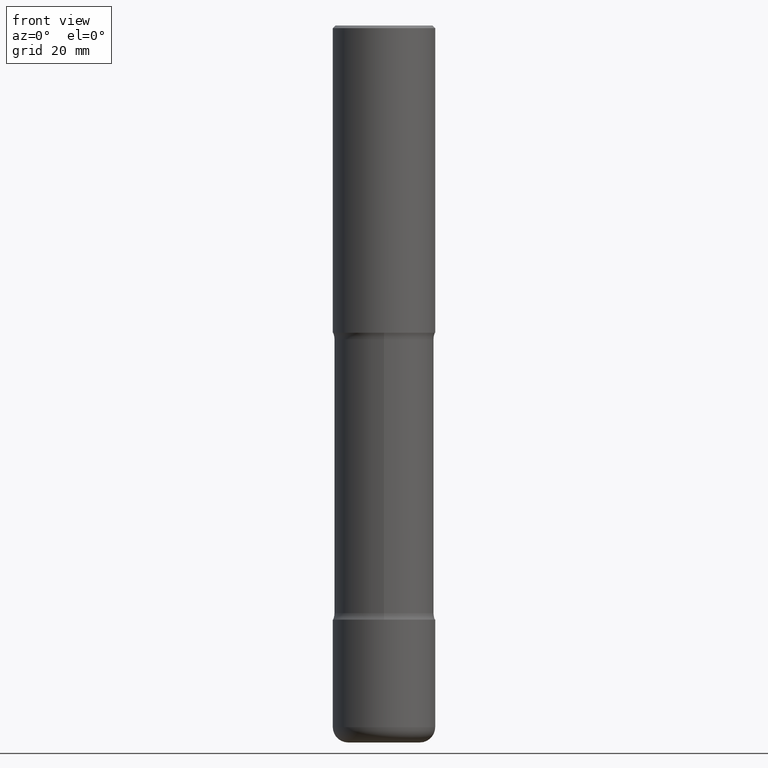
[diagram: clean part render]
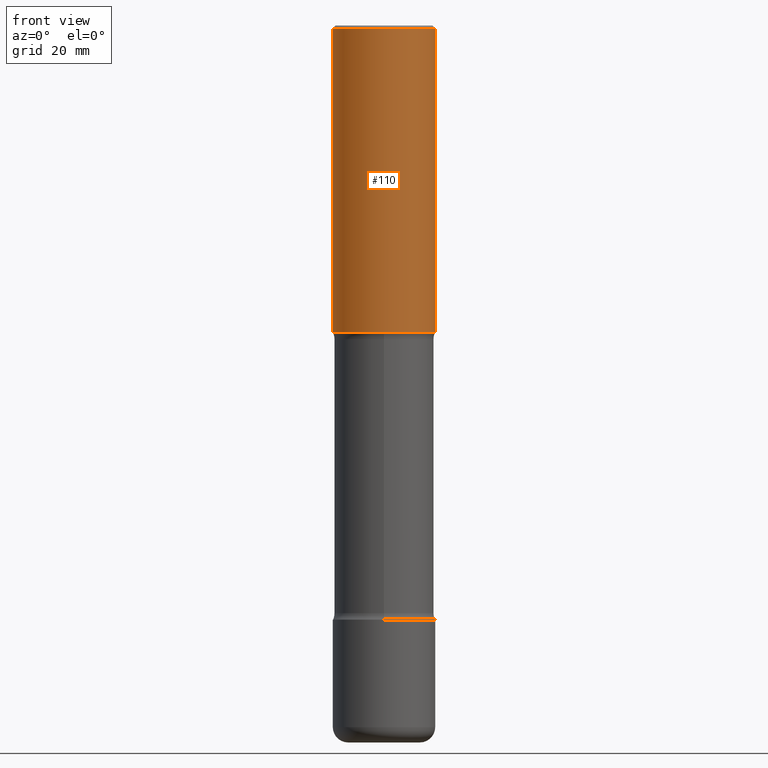
[diagram: same view with one face highlighted and labeled with its STEP entity id]
A machine part, front view. The second image highlights one B-rep face of the part: STEP entity #110.
In plain terms, the highlighted cylindrical surface (partial cylindrical patch) has radius 10 mm, axis along (-0, 0, 1).
Its self-contained STEP definition (entity closure, byte-faithful):
#14 = VECTOR ( 'NONE', #131, 39.37007874015748143 ) ;
#23 = AXIS2_PLACEMENT_3D ( 'NONE', #50, #111, #513 ) ;
#28 = ORIENTED_EDGE ( 'NONE', *, *, #502, .F. ) ;
#39 = DIRECTION ( 'NONE',  ( -2.445468806185136597E-29, 3.491481338843145583E-15, 1.000000000000000000 ) ) ;
#50 = CARTESIAN_POINT ( 'NONE',  ( 4.890937612370294178E-31, -6.982962677686321191E-17, -0.02000000000000008715 ) ) ;
#66 = CARTESIAN_POINT ( 'NONE',  ( 0.3937000000000002164, -1.099676962482036442E-14, -2.362200000000000077 ) ) ;
#76 = VECTOR ( 'NONE', #407, 39.37007874015748143 ) ;
#110 = ADVANCED_FACE ( 'NONE', ( #481 ), #472, .T. ) ;
#111 = DIRECTION ( 'NONE',  ( -2.445468806185136597E-29, 3.491481338843145583E-15, 1.000000000000000000 ) ) ;
#126 = EDGE_LOOP ( 'NONE', ( #475, #520, #251, #28 ) ) ;
#131 = DIRECTION ( 'NONE',  ( -2.445468806185136877E-29, 3.491481338843145188E-15, 1.000000000000000000 ) ) ;
#143 = CARTESIAN_POINT ( 'NONE',  ( -0.3937000000000000499, 2.679362779428219918E-15, -0.02000000000000008715 ) ) ;
#149 = CARTESIAN_POINT ( 'NONE',  ( -0.3937000000000002720, -1.361296672008554112E-15, -2.362200000000000077 ) ) ;
#170 = CARTESIAN_POINT ( 'NONE',  ( 0.3937000000000000499, -2.770807688499515734E-15, -0.02000000000000008715 ) ) ;
#177 = CARTESIAN_POINT ( 'NONE',  ( 5.776686413970530874E-29, -8.247577218615279626E-15, -2.362200000000000077 ) ) ;
#179 = EDGE_CURVE ( 'NONE', #383, #551, #246, .T. ) ;
#197 = EDGE_CURVE ( 'NONE', #432, #383, #334, .T. ) ;
#216 = CARTESIAN_POINT ( 'NONE',  ( 0.3937000000000001054, -2.749192406205084005E-15, 1.919750796630860452E-29 ) ) ;
#238 = AXIS2_PLACEMENT_3D ( 'NONE', #529, #532, #478 ) ;
#246 = LINE ( 'NONE', #216, #14 ) ;
#251 = ORIENTED_EDGE ( 'NONE', *, *, #179, .T. ) ;
#266 = CARTESIAN_POINT ( 'NONE',  ( -0.3937000000000001054, 2.797406750687515181E-15, -1.936584745033357016E-29 ) ) ;
#269 = LINE ( 'NONE', #266, #76 ) ;
#334 = CIRCLE ( 'NONE', #533, 0.3937000000000002164 ) ;
#335 = VERTEX_POINT ( 'NONE', #143 ) ;
#383 = VERTEX_POINT ( 'NONE', #66 ) ;
#405 = CIRCLE ( 'NONE', #23, 0.3937000000000000499 ) ;
#407 = DIRECTION ( 'NONE',  ( -2.445468806185136877E-29, 3.491481338843145188E-15, 1.000000000000000000 ) ) ;
#417 = EDGE_CURVE ( 'NONE', #432, #335, #269, .T. ) ;
#432 = VERTEX_POINT ( 'NONE', #149 ) ;
#447 = DIRECTION ( 'NONE',  ( 1.000000000000000000, -6.982962677686266711E-15, 0.000000000000000000 ) ) ;
#472 = CYLINDRICAL_SURFACE ( 'NONE', #238, 0.3937000000000001054 ) ;
#475 = ORIENTED_EDGE ( 'NONE', *, *, #417, .F. ) ;
#478 = DIRECTION ( 'NONE',  ( 1.000000000000000000, -6.982962677686266711E-15, 4.876176775795935793E-29 ) ) ;
#481 = FACE_OUTER_BOUND ( 'NONE', #126, .T. ) ;
#502 = EDGE_CURVE ( 'NONE', #335, #551, #405, .T. ) ;
#513 = DIRECTION ( 'NONE',  ( 1.000000000000000000, -6.982962677686265922E-15, 0.000000000000000000 ) ) ;
#520 = ORIENTED_EDGE ( 'NONE', *, *, #197, .T. ) ;
#529 = CARTESIAN_POINT ( 'NONE',  ( 0.000000000000000000, 0.000000000000000000, 0.000000000000000000 ) ) ;
#532 = DIRECTION ( 'NONE',  ( -2.445468806185136597E-29, 3.491481338843145583E-15, 1.000000000000000000 ) ) ;
#533 = AXIS2_PLACEMENT_3D ( 'NONE', #177, #39, #447 ) ;
#551 = VERTEX_POINT ( 'NONE', #170 ) ;